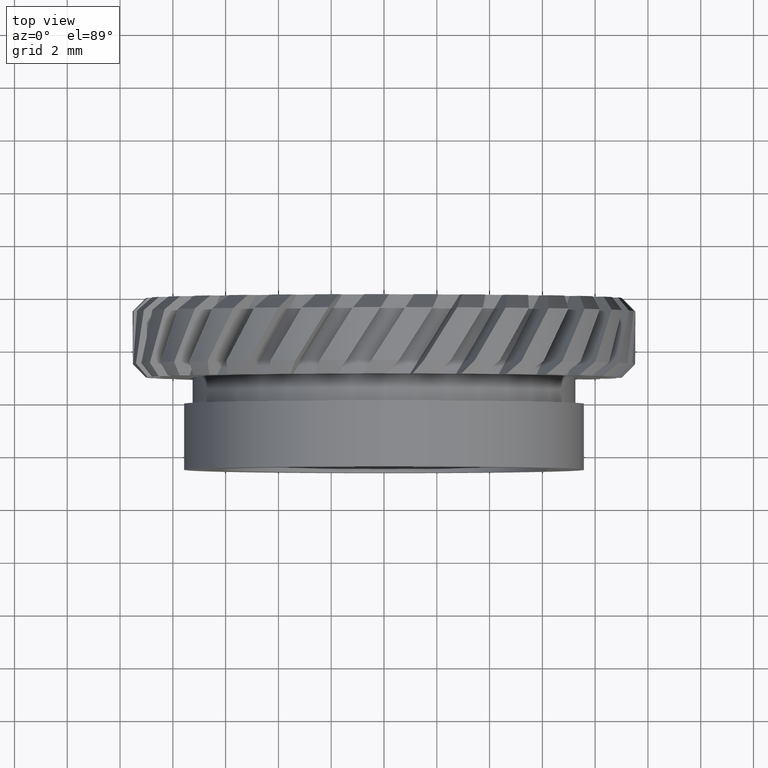
[diagram: clean part render]
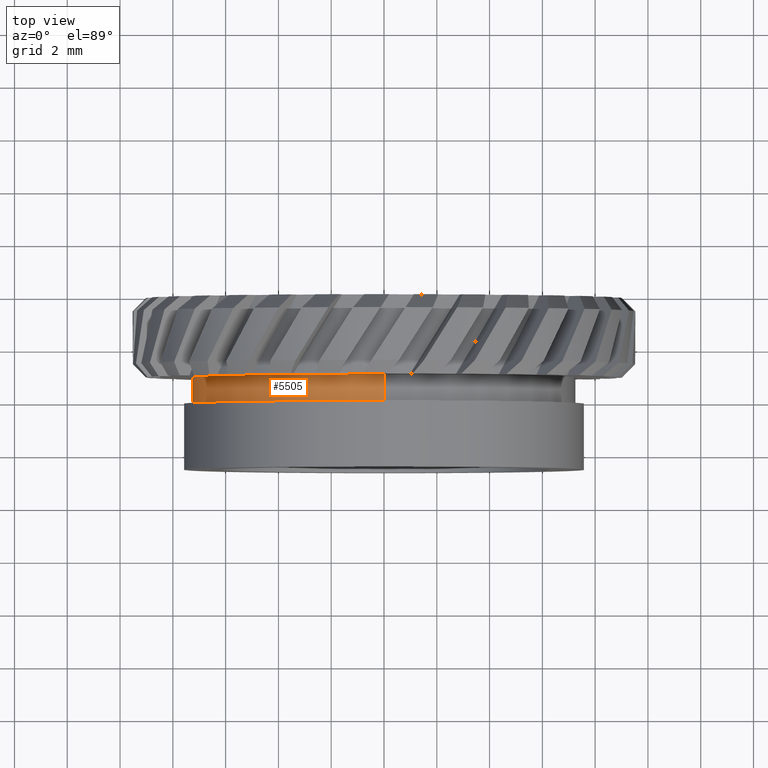
[diagram: same view with one face highlighted and labeled with its STEP entity id]
A machine part, top view. The second image highlights one B-rep face of the part: STEP entity #5505.
In plain terms, the highlighted cylindrical surface (partial cylindrical patch) has radius 7.25 mm, axis along (-0, 1, -0).
Its self-contained STEP definition (entity closure, byte-faithful):
#31 = DIRECTION ( 'NONE',  ( 0.0000000000000000000, 0.0000000000000000000, 1.000000000000000000 ) ) ;
#167 = CARTESIAN_POINT ( 'NONE',  ( 8.878689293818318000E-016, 66.62876213592232900, -7.250000000000006200 ) ) ;
#444 = CYLINDRICAL_SURFACE ( 'NONE', #1017, 7.250000000000006200 ) ;
#737 = EDGE_CURVE ( 'NONE', #4827, #5010, #7373, .T. ) ;
#1017 = AXIS2_PLACEMENT_3D ( 'NONE', #1551, #2805, #3908 ) ;
#1158 = CARTESIAN_POINT ( 'NONE',  ( 8.878689293818318000E-016, 18.87125740523061500, -7.250000000000006200 ) ) ;
#1275 = CARTESIAN_POINT ( 'NONE',  ( 0.0000000000000000000, 17.87125740523061500, 7.250000000000006200 ) ) ;
#1302 = DIRECTION ( 'NONE',  ( -0.0000000000000000000, 1.000000000000000000, -0.0000000000000000000 ) ) ;
#1340 = VECTOR ( 'NONE', #5008, 1000.000000000000000 ) ;
#1367 = AXIS2_PLACEMENT_3D ( 'NONE', #3163, #7391, #3694 ) ;
#1551 = CARTESIAN_POINT ( 'NONE',  ( 0.0000000000000000000, 66.62876213592232900, 0.0000000000000000000 ) ) ;
#1575 = DIRECTION ( 'NONE',  ( -0.0000000000000000000, 1.000000000000000000, -0.0000000000000000000 ) ) ;
#1858 = CARTESIAN_POINT ( 'NONE',  ( 0.0000000000000000000, 18.87125740523061500, 0.0000000000000000000 ) ) ;
#2434 = EDGE_CURVE ( 'NONE', #5988, #3313, #2503, .T. ) ;
#2503 = LINE ( 'NONE', #167, #1340 ) ;
#2624 = CARTESIAN_POINT ( 'NONE',  ( 0.0000000000000000000, 18.87125740523061500, 7.250000000000006200 ) ) ;
#2632 = CIRCLE ( 'NONE', #1367, 7.250000000000006200 ) ;
#2805 = DIRECTION ( 'NONE',  ( -0.0000000000000000000, 1.000000000000000000, -0.0000000000000000000 ) ) ;
#2810 = ORIENTED_EDGE ( 'NONE', *, *, #2434, .F. ) ;
#3018 = FACE_OUTER_BOUND ( 'NONE', #7372, .T. ) ;
#3163 = CARTESIAN_POINT ( 'NONE',  ( 0.0000000000000000000, 17.87125740523061500, 0.0000000000000000000 ) ) ;
#3313 = VERTEX_POINT ( 'NONE', #1158 ) ;
#3694 = DIRECTION ( 'NONE',  ( 0.0000000000000000000, 0.0000000000000000000, 1.000000000000000000 ) ) ;
#3908 = DIRECTION ( 'NONE',  ( 0.0000000000000000000, 0.0000000000000000000, 1.000000000000000000 ) ) ;
#3997 = CARTESIAN_POINT ( 'NONE',  ( 8.878689293818318000E-016, 17.87125740523061500, -7.250000000000006200 ) ) ;
#4030 = ORIENTED_EDGE ( 'NONE', *, *, #4836, .F. ) ;
#4134 = VECTOR ( 'NONE', #1575, 1000.000000000000000 ) ;
#4292 = CIRCLE ( 'NONE', #7563, 7.250000000000006200 ) ;
#4827 = VERTEX_POINT ( 'NONE', #1275 ) ;
#4836 = EDGE_CURVE ( 'NONE', #3313, #5010, #4292, .T. ) ;
#5008 = DIRECTION ( 'NONE',  ( -0.0000000000000000000, 1.000000000000000000, -0.0000000000000000000 ) ) ;
#5010 = VERTEX_POINT ( 'NONE', #2624 ) ;
#5505 = ADVANCED_FACE ( 'NONE', ( #3018 ), #444, .T. ) ;
#5871 = ORIENTED_EDGE ( 'NONE', *, *, #737, .T. ) ;
#5988 = VERTEX_POINT ( 'NONE', #3997 ) ;
#6427 = ORIENTED_EDGE ( 'NONE', *, *, #6776, .T. ) ;
#6776 = EDGE_CURVE ( 'NONE', #5988, #4827, #2632, .T. ) ;
#7043 = CARTESIAN_POINT ( 'NONE',  ( 0.0000000000000000000, 66.62876213592232900, 7.250000000000006200 ) ) ;
#7372 = EDGE_LOOP ( 'NONE', ( #2810, #6427, #5871, #4030 ) ) ;
#7373 = LINE ( 'NONE', #7043, #4134 ) ;
#7391 = DIRECTION ( 'NONE',  ( -0.0000000000000000000, 1.000000000000000000, -0.0000000000000000000 ) ) ;
#7563 = AXIS2_PLACEMENT_3D ( 'NONE', #1858, #1302, #31 ) ;